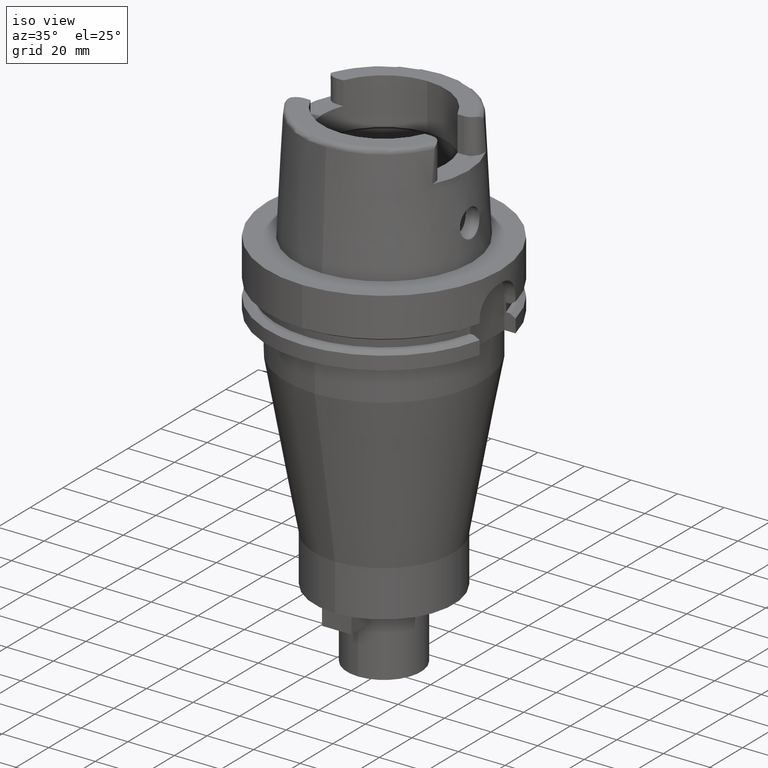
[diagram: clean part render]
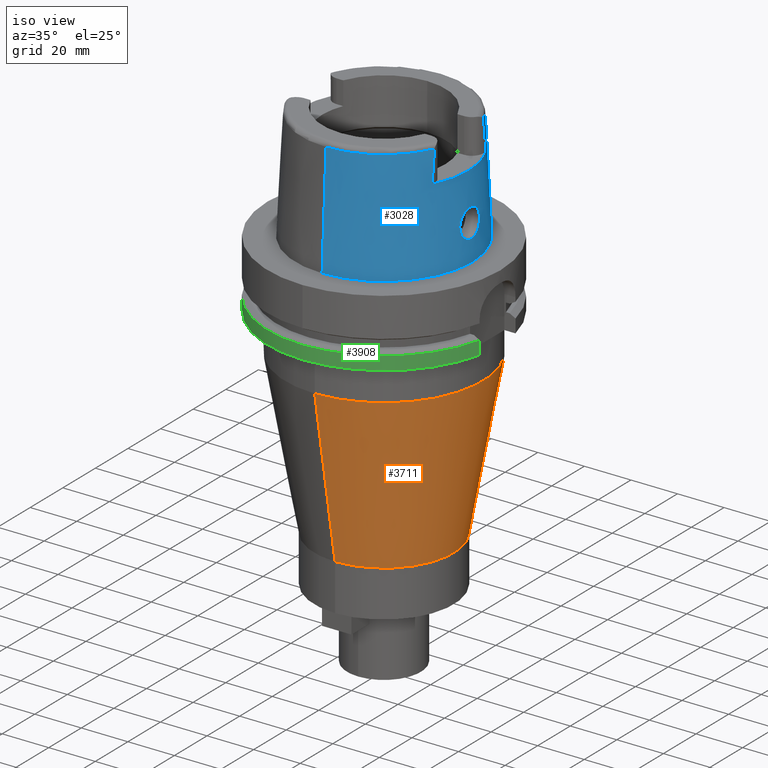
[diagram: same view with three faces highlighted in distinct colors, each labeled with its STEP entity id]
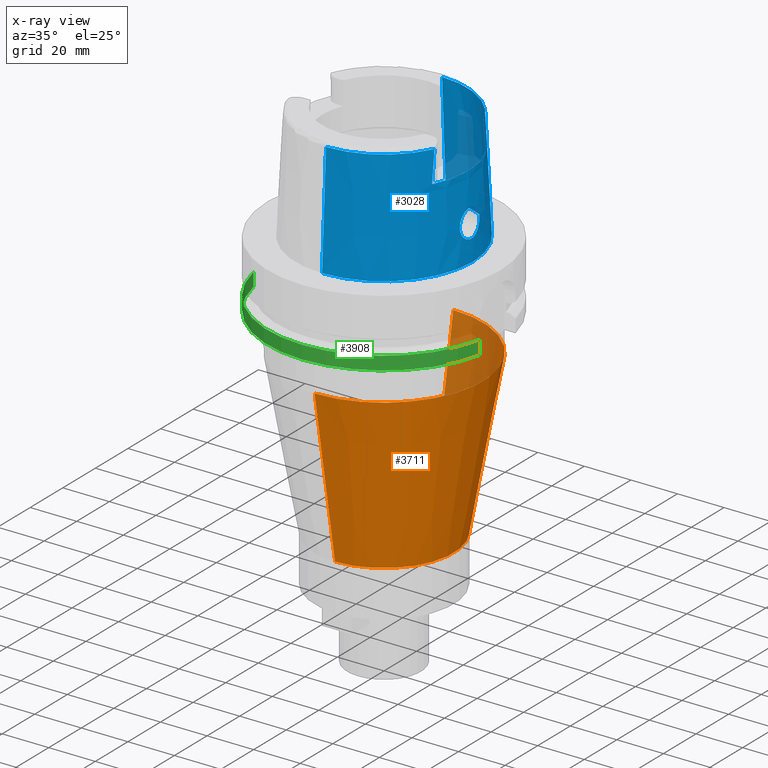
[diagram: x-ray of the same camera — body ghosted, the three highlighted faces saturated]
A machine part, iso view with three faces highlighted in distinct colors.
The next image is the same camera in x-ray (body ghosted, the three faces saturated) — at least one of them is partly hidden behind the body in this view.
Their STEP definitions:

[orange] entity #3711 — the highlighted conical surface has half-angle 10.125 deg.
#1217=DIRECTION('',(0.E0,1.757906384837E-1,-9.844275755085E-1));
#1218=VECTOR('',#1217,7.110731326664E1);
#1219=CARTESIAN_POINT('',(0.E0,-4.25E1,-4.5E1));
#1220=LINE('',#1219,#1218);
#1232=DIRECTION('',(0.E0,-1.757906384837E-1,-9.844275755085E-1));
#1233=VECTOR('',#1232,7.110731326664E1);
#1234=CARTESIAN_POINT('',(0.E0,4.25E1,-4.5E1));
#1235=LINE('',#1234,#1233);
#1239=CARTESIAN_POINT('',(0.E0,0.E0,-1.15E2));
#1240=DIRECTION('',(0.E0,0.E0,-1.E0));
#1241=DIRECTION('',(0.E0,1.E0,0.E0));
#1242=AXIS2_PLACEMENT_3D('',#1239,#1240,#1241);
#1247=CARTESIAN_POINT('',(0.E0,0.E0,-4.5E1));
#1248=DIRECTION('',(0.E0,0.E0,1.E0));
#1249=DIRECTION('',(0.E0,-1.E0,0.E0));
#1250=AXIS2_PLACEMENT_3D('',#1247,#1248,#1249);
#2621=CARTESIAN_POINT('',(0.E0,3.E1,-1.15E2));
#2622=VERTEX_POINT('',#2621);
#2623=CARTESIAN_POINT('',(0.E0,-3.E1,-1.15E2));
#2624=VERTEX_POINT('',#2623);
#2625=CARTESIAN_POINT('',(0.E0,4.25E1,-4.5E1));
#2626=VERTEX_POINT('',#2625);
#2627=CARTESIAN_POINT('',(0.E0,-4.25E1,-4.5E1));
#2628=VERTEX_POINT('',#2627);
#3699=CARTESIAN_POINT('',(0.E0,0.E0,-8.E1));
#3700=DIRECTION('',(0.E0,0.E0,1.E0));
#3701=DIRECTION('',(0.E0,1.E0,0.E0));
#3702=AXIS2_PLACEMENT_3D('',#3699,#3700,#3701);
#3703=CONICAL_SURFACE('',#3702,3.625E1,1.012467165540E1);
#3704=ORIENTED_EDGE('',*,*,#3689,.T.);
#3705=ORIENTED_EDGE('',*,*,#3666,.T.);
#3706=ORIENTED_EDGE('',*,*,#3693,.F.);
#3708=ORIENTED_EDGE('',*,*,#3707,.T.);
#3709=EDGE_LOOP('',(#3704,#3705,#3706,#3708));
#3710=FACE_OUTER_BOUND('',#3709,.F.);
#1243=CIRCLE('',#1242,3.E1);
#1251=CIRCLE('',#1250,4.25E1);
#3666=EDGE_CURVE('',#2622,#2624,#1243,.T.);
#3689=EDGE_CURVE('',#2626,#2622,#1235,.T.);
#3693=EDGE_CURVE('',#2628,#2624,#1220,.T.);
#3707=EDGE_CURVE('',#2628,#2626,#1251,.T.);
#3711=ADVANCED_FACE('',(#3710),#3703,.T.);

[blue] entity #3028 — the highlighted conical surface has half-angle 2.862 deg.
#268=CARTESIAN_POINT('',(3.225000552017E1,-1.506439831465E1,4.810004147836E1));
#273=CARTESIAN_POINT('',(0.E0,0.E0,4.809987853799E1));
#274=DIRECTION('',(0.E0,0.E0,-1.E0));
#275=DIRECTION('',(9.060280460805E-1,-4.232176505246E-1,0.E0));
#276=AXIS2_PLACEMENT_3D('',#273,#274,#275);
#299=DIRECTION('',(5.154182075151E-5,-4.993927430816E-2,-9.987522546783E-1));
#300=VECTOR('',#299,4.815996991514E1);
#301=CARTESIAN_POINT('',(-2.482252536761E-3,-3.559494263425E1,
4.809987853799E1));
#302=LINE('',#301,#300);
#354=CARTESIAN_POINT('',(3.224999527489E1,1.655287543599E1,3.5E1));
#355=CARTESIAN_POINT('',(3.224999527489E1,1.639226210430E1,3.646677430492E1));
#356=CARTESIAN_POINT('',(3.224999958003E1,1.606837255796E1,3.939292733975E1));
#357=CARTESIAN_POINT('',(3.225000855756E1,1.557203228358E1,4.375938278638E1));
#358=CARTESIAN_POINT('',(3.224998031234E1,1.523513273954E1,4.665592184944E1));
#359=CARTESIAN_POINT('',(3.224998031234E1,1.506460254626E1,4.809931724634E1));
#364=DIRECTION('',(-5.154182075159E-5,4.993927430816E-2,-9.987522546783E-1));
#365=VECTOR('',#364,4.815996991514E1);
#366=CARTESIAN_POINT('',(2.482252536765E-3,3.559494263425E1,4.809987853799E1));
#367=LINE('',#366,#365);
#371=CARTESIAN_POINT('',(3.225000552017E1,-1.506439831465E1,4.810004147836E1));
#372=CARTESIAN_POINT('',(3.225000552017E1,-1.523503287477E1,4.665577822477E1));
#373=CARTESIAN_POINT('',(3.225000026293E1,-1.557219473682E1,4.376011572066E1));
#374=CARTESIAN_POINT('',(3.224999079948E1,-1.606856473306E1,3.939344262441E1));
#375=CARTESIAN_POINT('',(3.225002129259E1,-1.639212166417E1,3.646699412941E1));
#376=CARTESIAN_POINT('',(3.225002129259E1,-1.655276054267E1,3.5E1));
#381=CARTESIAN_POINT('',(3.694998175923E1,-1.394597051989E-13,2.1E1));
#382=CARTESIAN_POINT('',(3.694998175923E1,-5.232805825137E-1,2.1E1));
#383=CARTESIAN_POINT('',(3.693412152470E1,-1.570693236844E0,2.086222332406E1));
#384=CARTESIAN_POINT('',(3.687095562649E1,-3.036701867481E0,2.025512915028E1));
#385=CARTESIAN_POINT('',(3.679116415493E1,-4.298075917775E0,1.928517625291E1));
#386=CARTESIAN_POINT('',(3.672652600871E1,-5.260638641482E0,1.802616496431E1));
#387=CARTESIAN_POINT('',(3.670709442920E1,-5.863316355355E0,1.656326116207E1));
#388=CARTESIAN_POINT('',(3.675197115820E1,-6.067510637984E0,1.500805001580E1));
#389=CARTESIAN_POINT('',(3.686442990665E1,-5.866615843088E0,1.344717646024E1));
#390=CARTESIAN_POINT('',(3.703148904113E1,-5.264441251039E0,1.197988817607E1));
#391=CARTESIAN_POINT('',(3.722246963672E1,-4.299859698349E0,1.071549188968E1));
#392=CARTESIAN_POINT('',(3.739912471728E1,-3.029569998324E0,9.739961700012E0));
#393=CARTESIAN_POINT('',(3.752125661704E1,-1.560380893417E0,9.135355489641E0));
#394=CARTESIAN_POINT('',(3.755000165825E1,-5.187090519600E-1,9.E0));
#395=CARTESIAN_POINT('',(3.755000165825E1,0.E0,9.E0));
#400=CARTESIAN_POINT('',(3.755000165825E1,0.E0,9.E0));
#401=CARTESIAN_POINT('',(3.755000165825E1,5.182806704232E-1,9.E0));
#402=CARTESIAN_POINT('',(3.752122170466E1,1.556200545770E0,9.135586306996E0));
#403=CARTESIAN_POINT('',(3.740131086615E1,3.006909191341E0,9.729068139156E0));
#404=CARTESIAN_POINT('',(3.722710119282E1,4.271888499135E0,1.068837377019E1));
#405=CARTESIAN_POINT('',(3.703570306329E1,5.246981826640E0,1.194770536625E1));
#406=CARTESIAN_POINT('',(3.686596276071E1,5.863324834486E0,1.342798528602E1));
#407=CARTESIAN_POINT('',(3.675178975746E1,6.068840091696E0,1.500717573144E1));
#408=CARTESIAN_POINT('',(3.670698883193E1,5.861303323600E0,1.657205564634E1));
#409=CARTESIAN_POINT('',(3.672679922314E1,5.256798880481E0,1.803132847537E1));
#410=CARTESIAN_POINT('',(3.679097672337E1,4.300596004337E0,1.928151702635E1));
#411=CARTESIAN_POINT('',(3.687055096286E1,3.044017711032E0,2.025100279235E1));
#412=CARTESIAN_POINT('',(3.693403114965E1,1.575042202816E0,2.086147487561E1));
#413=CARTESIAN_POINT('',(3.694998175923E1,5.250126183756E-1,2.1E1));
#414=CARTESIAN_POINT('',(3.694998175923E1,-1.394597051989E-13,2.1E1));
#449=CARTESIAN_POINT('',(0.E0,0.E0,3.5E1));
#450=DIRECTION('',(0.E0,0.E0,-1.E0));
#451=DIRECTION('',(8.896561898443E-1,4.566309931135E-1,0.E0));
#452=AXIS2_PLACEMENT_3D('',#449,#450,#451);
#2047=CARTESIAN_POINT('',(0.E0,0.E0,1.023181539495E-12));
#2048=DIRECTION('',(0.E0,0.E0,1.E0));
#2049=DIRECTION('',(0.E0,-1.E0,0.E0));
#2050=AXIS2_PLACEMENT_3D('',#2047,#2048,#2049);
#2399=CARTESIAN_POINT('',(0.E0,0.E0,4.809987853799E1));
#2400=DIRECTION('',(0.E0,0.E0,-1.E0));
#2401=DIRECTION('',(0.E0,1.E0,0.E0));
#2402=AXIS2_PLACEMENT_3D('',#2399,#2400,#2401);
#2485=CARTESIAN_POINT('',(0.E0,3.559494289391E1,4.809987853799E1));
#2486=VERTEX_POINT('',#2485);
#2487=CARTESIAN_POINT('',(3.224994093704E1,1.506456999646E1,4.809987853799E1));
#2488=VERTEX_POINT('',#2487);
#2492=VERTEX_POINT('',#268);
#2493=CARTESIAN_POINT('',(1.065814103640E-14,-3.559494289391E1,
4.809987853799E1));
#2494=VERTEX_POINT('',#2493);
#2495=CARTESIAN_POINT('',(0.E0,-3.800001658252E1,6.821210263297E-13));
#2496=VERTEX_POINT('',#2495);
#2497=CARTESIAN_POINT('',(0.E0,3.800001658252E1,1.023181539495E-12));
#2498=VERTEX_POINT('',#2497);
#2501=CARTESIAN_POINT('',(3.225E1,1.655285457013E1,3.5E1));
#2502=CARTESIAN_POINT('',(3.225E1,-1.655285457013E1,3.5E1));
#2503=VERTEX_POINT('',#2501);
#2504=VERTEX_POINT('',#2502);
#2505=VERTEX_POINT('',#381);
#2506=VERTEX_POINT('',#395);
#3002=CARTESIAN_POINT('',(0.E0,0.E0,2.404993926900E1));
#3003=DIRECTION('',(0.E0,0.E0,-1.E0));
#3004=DIRECTION('',(0.E0,-1.E0,0.E0));
#3005=AXIS2_PLACEMENT_3D('',#3002,#3003,#3004);
#3006=CONICAL_SURFACE('',#3005,3.679747973821E1,2.8625E0);
#3008=ORIENTED_EDGE('',*,*,#3007,.F.);
#3010=ORIENTED_EDGE('',*,*,#3009,.T.);
#3012=ORIENTED_EDGE('',*,*,#3011,.F.);
#3013=ORIENTED_EDGE('',*,*,#2987,.T.);
#3015=ORIENTED_EDGE('',*,*,#3014,.F.);
#3016=ORIENTED_EDGE('',*,*,#2983,.F.);
#3017=ORIENTED_EDGE('',*,*,#2955,.F.);
#3019=ORIENTED_EDGE('',*,*,#3018,.T.);
#3020=EDGE_LOOP('',(#3008,#3010,#3012,#3013,#3015,#3016,#3017,#3019));
#3021=FACE_OUTER_BOUND('',#3020,.F.);
#3023=ORIENTED_EDGE('',*,*,#3022,.T.);
#3025=ORIENTED_EDGE('',*,*,#3024,.T.);
#3026=EDGE_LOOP('',(#3023,#3025));
#3027=FACE_BOUND('',#3026,.F.);
#277=CIRCLE('',#276,3.559494289391E1);
#360=B_SPLINE_CURVE_WITH_KNOTS('',3,(#354,#355,#356,#357,#358,#359),
.UNSPECIFIED.,.F.,.F.,(4,1,1,4),(0.E0,3.333333333333E-1,6.666666666667E-1,1.E0),
.UNSPECIFIED.);
#377=B_SPLINE_CURVE_WITH_KNOTS('',3,(#371,#372,#373,#374,#375,#376),
.UNSPECIFIED.,.F.,.F.,(4,1,1,4),(0.E0,3.333333333333E-1,6.666666666667E-1,1.E0),
.UNSPECIFIED.);
#396=B_SPLINE_CURVE_WITH_KNOTS('',3,(#381,#382,#383,#384,#385,#386,#387,#388,
#389,#390,#391,#392,#393,#394,#395),.UNSPECIFIED.,.F.,.F.,(4,1,1,1,1,1,1,1,1,1,
1,1,4),(0.E0,8.333333333333E-2,1.666666666667E-1,2.5E-1,3.333333333333E-1,
4.166666666667E-1,5.E-1,5.833333333333E-1,6.666666666667E-1,7.5E-1,
8.333333333333E-1,9.166666666667E-1,1.E0),.UNSPECIFIED.);
#415=B_SPLINE_CURVE_WITH_KNOTS('',3,(#400,#401,#402,#403,#404,#405,#406,#407,
#408,#409,#410,#411,#412,#413,#414),.UNSPECIFIED.,.F.,.F.,(4,1,1,1,1,1,1,1,1,1,
1,1,4),(0.E0,8.333333333333E-2,1.666666666667E-1,2.5E-1,3.333333333333E-1,
4.166666666667E-1,5.E-1,5.833333333333E-1,6.666666666667E-1,7.5E-1,
8.333333333333E-1,9.166666666667E-1,1.E0),.UNSPECIFIED.);
#453=CIRCLE('',#452,3.624995854370E1);
#2051=CIRCLE('',#2050,3.800001658252E1);
#2403=CIRCLE('',#2402,3.559494289391E1);
#2955=EDGE_CURVE('',#2492,#2494,#277,.T.);
#2983=EDGE_CURVE('',#2494,#2496,#302,.T.);
#2987=EDGE_CURVE('',#2486,#2498,#367,.T.);
#3007=EDGE_CURVE('',#2503,#2504,#453,.T.);
#3009=EDGE_CURVE('',#2503,#2488,#360,.T.);
#3011=EDGE_CURVE('',#2486,#2488,#2403,.T.);
#3014=EDGE_CURVE('',#2496,#2498,#2051,.T.);
#3018=EDGE_CURVE('',#2492,#2504,#377,.T.);
#3022=EDGE_CURVE('',#2505,#2506,#396,.T.);
#3024=EDGE_CURVE('',#2506,#2505,#415,.T.);
#3028=ADVANCED_FACE('',(#3021,#3027),#3006,.T.);

[green] entity #3908 — the highlighted cylindrical surface (partial cylindrical patch) has radius 50 mm, axis along (0, 0, 1).
#1291=CARTESIAN_POINT('',(0.E0,0.E0,-2.9E1));
#1292=DIRECTION('',(0.E0,0.E0,1.E0));
#1293=DIRECTION('',(-9.797958971133E-1,-2.E-1,0.E0));
#1294=AXIS2_PLACEMENT_3D('',#1291,#1292,#1293);
#1299=CARTESIAN_POINT('',(0.E0,0.E0,-2.9E1));
#1300=DIRECTION('',(0.E0,0.E0,1.E0));
#1301=DIRECTION('',(0.E0,-1.E0,0.E0));
#1302=AXIS2_PLACEMENT_3D('',#1299,#1300,#1301);
#1457=DIRECTION('',(9.140553361785E-14,0.E0,1.E0));
#1458=VECTOR('',#1457,5.752404735809E0);
#1459=CARTESIAN_POINT('',(-4.898979485566E1,-1.E1,-2.9E1));
#1460=LINE('',#1459,#1458);
#1464=DIRECTION('',(8.028864439406E-14,-2.223377844758E-14,-1.E0));
#1465=VECTOR('',#1464,5.752404735809E0);
#1466=CARTESIAN_POINT('',(4.877499359303E1,-1.1E1,-2.324759526419E1));
#1467=LINE('',#1466,#1465);
#2015=CARTESIAN_POINT('',(0.E0,0.E0,-2.324759526419E1));
#2016=DIRECTION('',(0.E0,0.E0,-1.E0));
#2017=DIRECTION('',(9.754998718606E-1,-2.2E-1,0.E0));
#2018=AXIS2_PLACEMENT_3D('',#2015,#2016,#2017);
#2023=CARTESIAN_POINT('',(0.E0,0.E0,-2.324759526419E1));
#2024=DIRECTION('',(0.E0,0.E0,-1.E0));
#2025=DIRECTION('',(0.E0,-1.E0,0.E0));
#2026=AXIS2_PLACEMENT_3D('',#2023,#2024,#2025);
#2645=CARTESIAN_POINT('',(-4.898979485566E1,-1.E1,-2.9E1));
#2646=VERTEX_POINT('',#2645);
#2647=CARTESIAN_POINT('',(-6.821749291191E-14,-5.E1,-2.9E1));
#2648=CARTESIAN_POINT('',(4.877499359303E1,-1.1E1,-2.9E1));
#2649=VERTEX_POINT('',#2647);
#2650=VERTEX_POINT('',#2648);
#2673=CARTESIAN_POINT('',(-4.898979485566E1,-1.E1,-2.324759526419E1));
#2674=VERTEX_POINT('',#2673);
#2675=CARTESIAN_POINT('',(4.877499359303E1,-1.1E1,-2.324759526419E1));
#2676=CARTESIAN_POINT('',(-2.664535259100E-14,-5.E1,-2.324759526419E1));
#2677=VERTEX_POINT('',#2675);
#2678=VERTEX_POINT('',#2676);
#3892=CARTESIAN_POINT('',(0.E0,0.E0,-1.7575E2));
#3893=DIRECTION('',(0.E0,0.E0,1.E0));
#3894=DIRECTION('',(0.E0,1.E0,0.E0));
#3895=AXIS2_PLACEMENT_3D('',#3892,#3893,#3894);
#3896=CYLINDRICAL_SURFACE('',#3895,5.E1);
#3898=ORIENTED_EDGE('',*,*,#3897,.T.);
#3900=ORIENTED_EDGE('',*,*,#3899,.F.);
#3902=ORIENTED_EDGE('',*,*,#3901,.F.);
#3903=ORIENTED_EDGE('',*,*,#3872,.T.);
#3904=ORIENTED_EDGE('',*,*,#3759,.F.);
#3905=ORIENTED_EDGE('',*,*,#3757,.F.);
#3906=EDGE_LOOP('',(#3898,#3900,#3902,#3903,#3904,#3905));
#3907=FACE_OUTER_BOUND('',#3906,.F.);
#1295=CIRCLE('',#1294,5.E1);
#1303=CIRCLE('',#1302,5.E1);
#2019=CIRCLE('',#2018,5.E1);
#2027=CIRCLE('',#2026,5.E1);
#3757=EDGE_CURVE('',#2646,#2649,#1295,.T.);
#3759=EDGE_CURVE('',#2649,#2650,#1303,.T.);
#3872=EDGE_CURVE('',#2677,#2650,#1467,.T.);
#3897=EDGE_CURVE('',#2646,#2674,#1460,.T.);
#3899=EDGE_CURVE('',#2678,#2674,#2027,.T.);
#3901=EDGE_CURVE('',#2677,#2678,#2019,.T.);
#3908=ADVANCED_FACE('',(#3907),#3896,.T.);